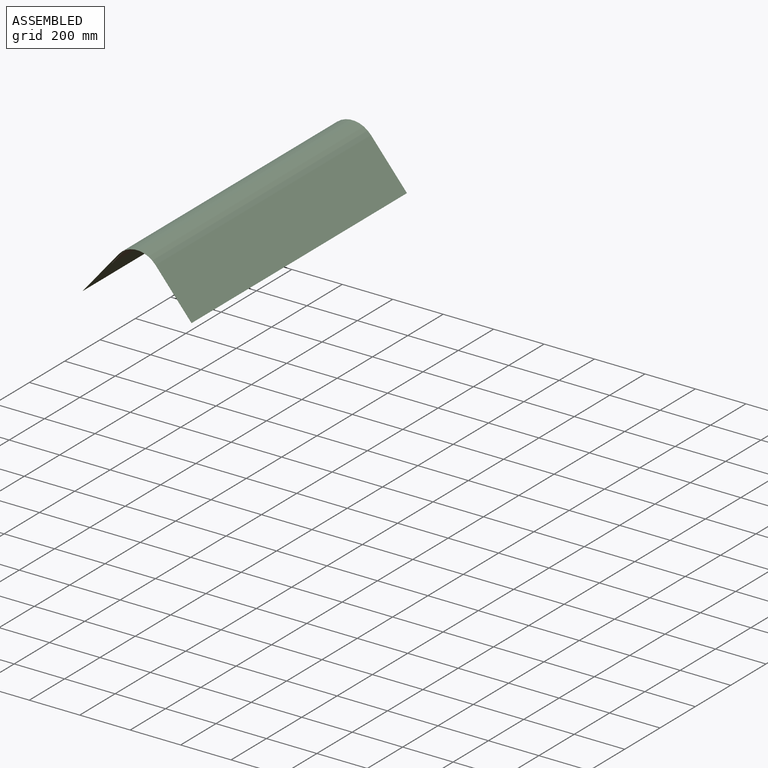
[diagram: assembled view]
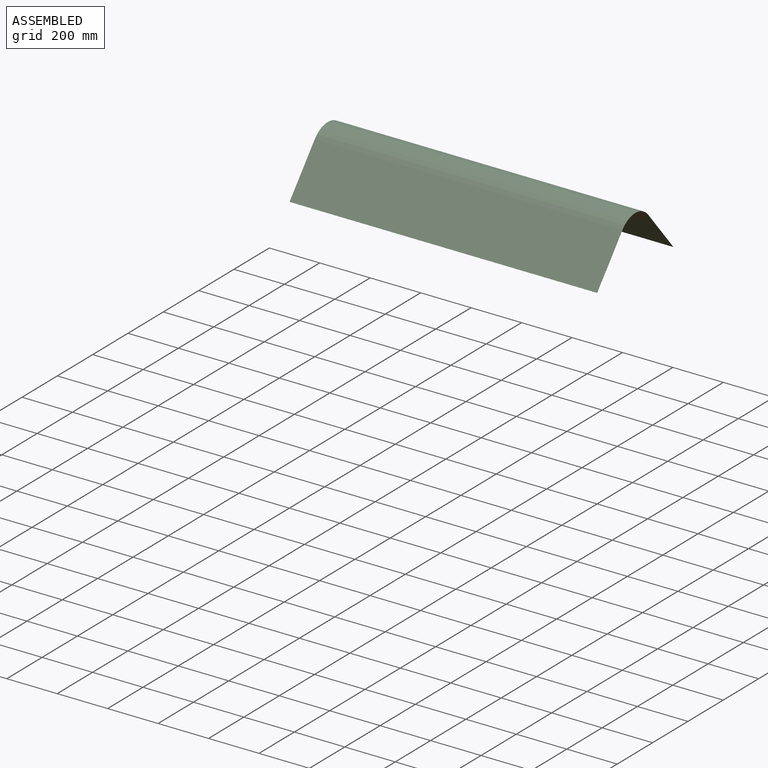
[diagram: assembled view, second angle]
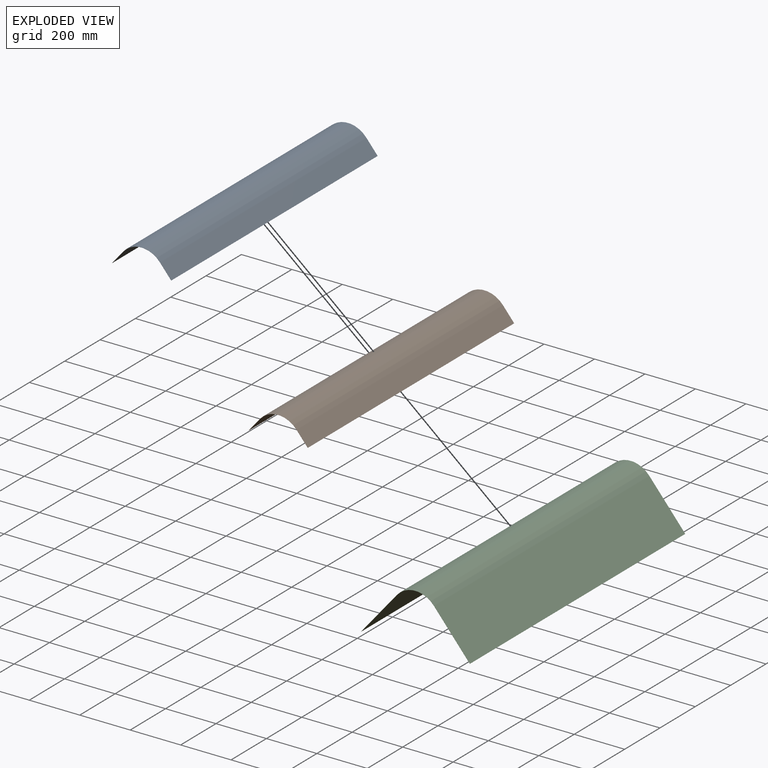
[diagram: exploded view]
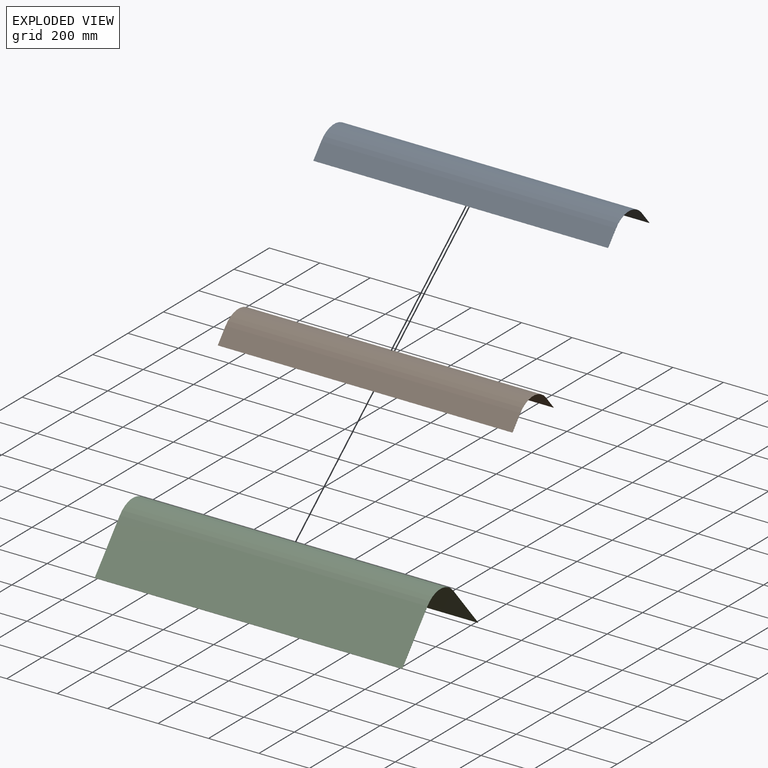
[diagram: exploded view, second angle]
ASSEMBLY  parts=3 mates=4
PART A: 10 faces, bbox 235x1168.4x87.5 mm
  f0: plane 1168.4x53.1mm, normal (-0.77,0,-0.64), area 80994.5mm2, adj f1,f7,f8,f9
  f1: plane 1168.4x0.39mm, normal (0.64,0,-0.77), area 593.5mm2, adj f0,f2,f8,f9
  f2: plane 1168.4x53.1mm, normal (0.77,0,0.64), area 80994.5mm2, adj f1,f3,f8,f9
  f3: cylinder r=95.25mm len=1168.4mm, axis (0,1,0), area 194237.9mm2, adj f2,f4,f8,f9
  f4: plane 1168.4x53.1mm, normal (-0.77,0,0.64), area 80994.5mm2, adj f3,f5,f8,f9
  f5: plane 1168.4x0.39mm, normal (-0.64,0,-0.77), area 593.5mm2, adj f4,f6,f8,f9
  f6: plane 1168.4x53.1mm, normal (0.77,0,-0.64), area 80994.5mm2, adj f5,f7,f8,f9
  f7: cylinder r=94.74mm len=1168.4mm, axis (0,1,0), area 193201.9mm2, adj f0,f6,f8,f9
  f8: plane 235.05x87.45mm, normal (0,-1,0), area 154.7mm2, adj f0,f1,f2,f3,f4,f5,f6,f7
  f9: plane 235.05x87.45mm, normal (0,1,0), area 154.7mm2, adj f0,f1,f2,f3,f4,f5,f6,f7
PART B: 10 faces, bbox 234.3x1168.4x87.2 mm
  f0: cylinder r=94.36mm len=1168.4mm, axis (0,1,0), area 192425mm2, adj f1,f7,f8,f9
  f1: plane 1168.4x53.1mm, normal (-0.77,0,-0.64), area 80994.5mm2, adj f0,f2,f8,f9
  f2: plane 1168.4x0.29mm, normal (0.64,0,-0.77), area 445.2mm2, adj f1,f3,f8,f9
  f3: plane 1168.4x53.1mm, normal (0.77,0,0.64), area 80994.5mm2, adj f2,f4,f8,f9
  f4: cylinder r=94.74mm len=1168.4mm, axis (0,1,0), area 193201.9mm2, adj f3,f5,f8,f9
  f5: plane 1168.4x53.1mm, normal (-0.77,0,0.64), area 80994.5mm2, adj f4,f6,f8,f9
  f6: plane 1168.4x0.29mm, normal (-0.64,0,-0.77), area 445.2mm2, adj f5,f7,f8,f9
  f7: plane 1168.4x53.1mm, normal (0.77,0,-0.64), area 80994.5mm2, adj f0,f6,f8,f9
  f8: plane 234.27x87.19mm, normal (0,-1,0), area 115.7mm2, adj f0,f1,f2,f3,f4,f5,f6,f7
  f9: plane 234.27x87.19mm, normal (0,1,0), area 115.7mm2, adj f0,f1,f2,f3,f4,f5,f6,f7
PART C: 10 faces, bbox 431.6x1219.2x204.3 mm
  f0: plane 1219.2x0.29mm, normal (0.64,0,-0.77), area 464.5mm2, adj f1,f7,f8,f9
  f1: plane 1219.2x169.85mm, normal (0.77,0,0.64), area 270322mm2, adj f0,f2,f8,f9
  f2: cylinder r=95.63mm len=1219.2mm, axis (0,1,0), area 203493.7mm2, adj f1,f3,f8,f9
  f3: plane 1219.2x169.85mm, normal (-0.77,0,0.64), area 270322mm2, adj f2,f4,f8,f9
  f4: plane 1219.2x0.29mm, normal (-0.64,0,-0.77), area 464.5mm2, adj f3,f5,f8,f9
  f5: plane 1219.2x169.85mm, normal (0.77,0,-0.64), area 270322mm2, adj f4,f6,f8,f9
  f6: cylinder r=95.25mm len=1219.2mm, axis (0,1,0), area 202683mm2, adj f5,f7,f8,f9
  f7: plane 1219.2x169.85mm, normal (-0.77,0,-0.64), area 270322mm2, adj f0,f6,f8,f9
  f8: plane 431.55x204.25mm, normal (0,1,0), area 232.4mm2, adj f0,f1,f2,f3,f4,f5,f6,f7
  f9: plane 431.55x204.25mm, normal (0,-1,0), area 232.4mm2, adj f0,f1,f2,f3,f4,f5,f6,f7
PLACE A t=(-482.4,623.83,-544.59)mm
PLACE B t=(-482.4,623.83,-544.59)mm fixed
PLACE C t=(-482.4,623.83,-544.59)mm
MATE planar C.f5 <-> A.f4  axis (0.77,0,-0.64) through (-626.62,623.83,174.67)mm
MATE planar B.f5 <-> A.f6  axis (-0.77,0,0.64) through (-577.25,623.83,232.71)mm
MATE planar A.f2 <-> C.f7  axis (0.77,0,0.64) through (-387.15,623.83,233.04)mm
MATE planar A.f0 <-> B.f3  axis (-0.77,0,-0.64) through (-387.54,623.83,232.71)mm
